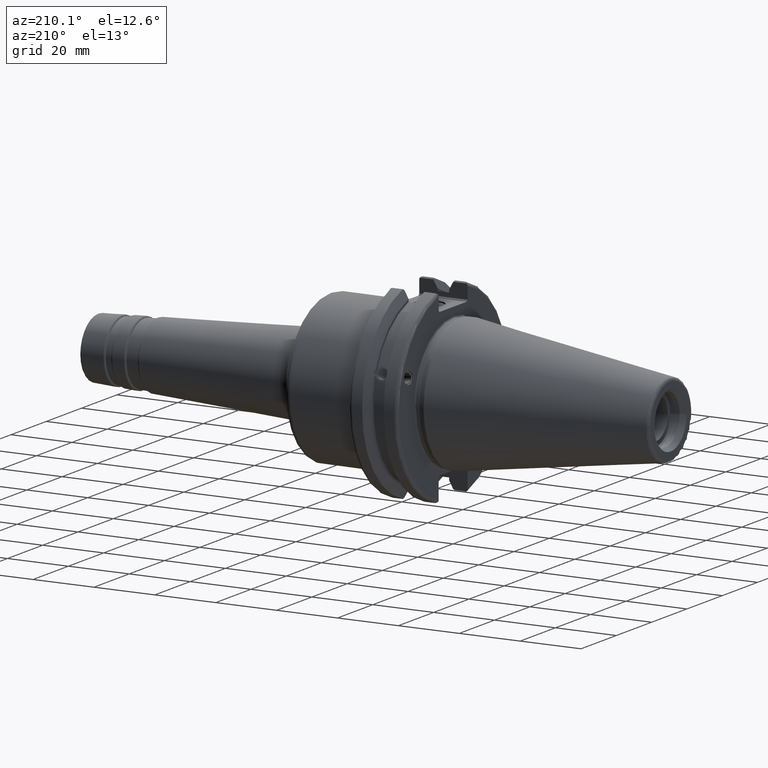
[diagram: clean part render]
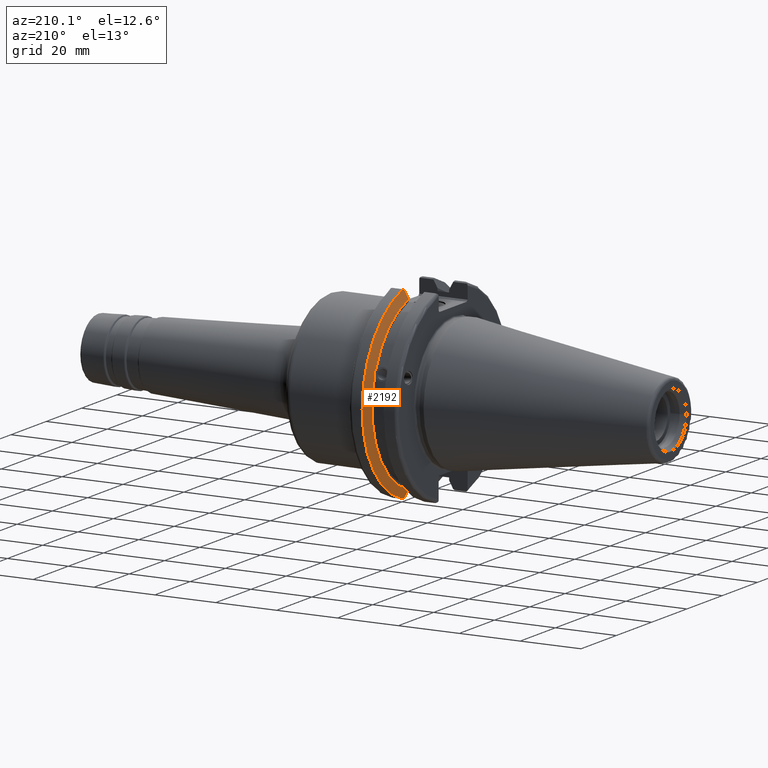
[diagram: same view with one face highlighted and labeled with its STEP entity id]
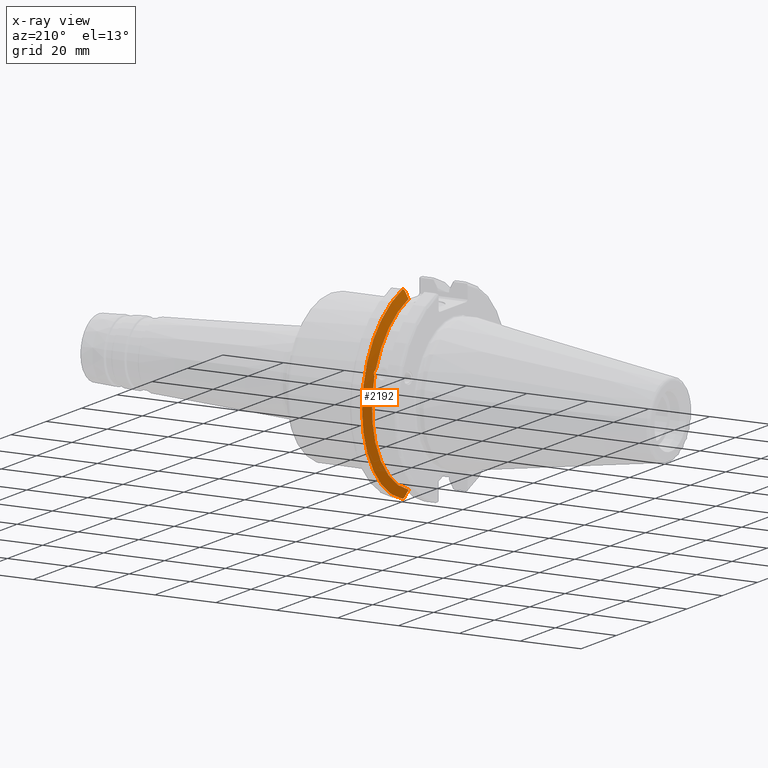
[diagram: x-ray of the same camera — body ghosted, the highlighted face saturated]
A machine part, auxiliary view. The second image highlights one B-rep face of the part: STEP entity #2192.
The next image is the same camera in x-ray: the body ghosted, the highlighted face saturated — about 0% of this face is hidden behind the body in this view.
In plain terms, the highlighted conical surface has half-angle 60 deg.
Its self-contained STEP definition (entity closure, byte-faithful):
#23=(
BOUNDED_CURVE()
B_SPLINE_CURVE(2,(#4026,#4027,#4028),.UNSPECIFIED.,.F.,.F.)
B_SPLINE_CURVE_WITH_KNOTS((3,3),(0.329353533631226,0.393258405001025),
 .UNSPECIFIED.)
CURVE()
GEOMETRIC_REPRESENTATION_ITEM()
RATIONAL_B_SPLINE_CURVE((1.00047644010577,1.00028444218285,1.))
REPRESENTATION_ITEM('')
);
#24=(
BOUNDED_CURVE()
B_SPLINE_CURVE(2,(#4040,#4041,#4042),.UNSPECIFIED.,.F.,.F.)
B_SPLINE_CURVE_WITH_KNOTS((3,3),(0.0550586467393769,0.331607789535852),
 .UNSPECIFIED.)
CURVE()
GEOMETRIC_REPRESENTATION_ITEM()
RATIONAL_B_SPLINE_CURVE((1.00031614444922,1.00095203903643,1.))
REPRESENTATION_ITEM('')
);
#29=(
BOUNDED_CURVE()
B_SPLINE_CURVE(2,(#4209,#4210,#4211),.UNSPECIFIED.,.F.,.F.)
B_SPLINE_CURVE_WITH_KNOTS((3,3),(0.,0.276549142795274),.UNSPECIFIED.)
CURVE()
GEOMETRIC_REPRESENTATION_ITEM()
RATIONAL_B_SPLINE_CURVE((1.,1.00095203903599,1.00031614444907))
REPRESENTATION_ITEM('')
);
#30=(
BOUNDED_CURVE()
B_SPLINE_CURVE(2,(#4226,#4227,#4228),.UNSPECIFIED.,.F.,.F.)
B_SPLINE_CURVE_WITH_KNOTS((3,3),(0.,0.0639048713675655),.UNSPECIFIED.)
CURVE()
GEOMETRIC_REPRESENTATION_ITEM()
RATIONAL_B_SPLINE_CURVE((1.,1.00028444218286,1.00047644010578))
REPRESENTATION_ITEM('')
);
#131=B_SPLINE_CURVE_WITH_KNOTS('',3,(#3817,#3818,#3819,#3820,#3821,#3822,
#3823,#3824),.UNSPECIFIED.,.F.,.F.,(4,2,2,4),(0.451995700189023,0.464547828547662,
0.504528771685167,0.544509714822672),.UNSPECIFIED.);
#135=B_SPLINE_CURVE_WITH_KNOTS('',3,(#3879,#3880,#3881,#3882,#3883,#3884,
#3885,#3886),.UNSPECIFIED.,.F.,.F.,(4,2,2,4),(0.544509714822672,0.584490657960177,
0.624471601097682,0.637023729456323),.UNSPECIFIED.);
#281=FACE_OUTER_BOUND('',#402,.T.);
#402=EDGE_LOOP('',(#2013,#2014,#2015,#2016,#2017,#2018,#2019,#2020,#2021));
#744=CIRCLE('',#2425,28.9593772964944);
#777=CIRCLE('',#2492,31.75);
#786=CIRCLE('',#2509,28.9593772964944);
#944=VERTEX_POINT('',#3814);
#945=VERTEX_POINT('',#3816);
#952=VERTEX_POINT('',#3877);
#961=VERTEX_POINT('',#3918);
#992=VERTEX_POINT('',#4023);
#993=VERTEX_POINT('',#4025);
#1022=VERTEX_POINT('',#4206);
#1023=VERTEX_POINT('',#4208);
#1026=VERTEX_POINT('',#4224);
#1239=EDGE_CURVE('',#945,#944,#131,.T.);
#1247=EDGE_CURVE('',#944,#952,#135,.T.);
#1259=EDGE_CURVE('',#961,#945,#744,.T.);
#1299=EDGE_CURVE('',#992,#993,#23,.T.);
#1304=EDGE_CURVE('',#992,#961,#24,.T.);
#1351=EDGE_CURVE('',#1023,#1022,#29,.T.);
#1359=EDGE_CURVE('',#1026,#1022,#30,.T.);
#1360=EDGE_CURVE('',#993,#1026,#777,.T.);
#1372=EDGE_CURVE('',#952,#1023,#786,.T.);
#2013=ORIENTED_EDGE('',*,*,#1239,.T.);
#2014=ORIENTED_EDGE('',*,*,#1247,.T.);
#2015=ORIENTED_EDGE('',*,*,#1372,.T.);
#2016=ORIENTED_EDGE('',*,*,#1351,.T.);
#2017=ORIENTED_EDGE('',*,*,#1359,.F.);
#2018=ORIENTED_EDGE('',*,*,#1360,.F.);
#2019=ORIENTED_EDGE('',*,*,#1299,.F.);
#2020=ORIENTED_EDGE('',*,*,#1304,.T.);
#2021=ORIENTED_EDGE('',*,*,#1259,.T.);
#2090=CONICAL_SURFACE('',#2508,30.3546886482472,1.0471975511966);
#2192=ADVANCED_FACE('',(#281),#2090,.T.);
#2425=AXIS2_PLACEMENT_3D('',#3919,#2984,#2985);
#2492=AXIS2_PLACEMENT_3D('',#4230,#3161,#3162);
#2508=AXIS2_PLACEMENT_3D('',#4254,#3196,#3197);
#2509=AXIS2_PLACEMENT_3D('',#4255,#3198,#3199);
#2984=DIRECTION('center_axis',(1.,0.,0.));
#2985=DIRECTION('ref_axis',(0.,0.,-1.));
#3161=DIRECTION('center_axis',(1.,0.,0.));
#3162=DIRECTION('ref_axis',(0.,0.,-1.));
#3196=DIRECTION('center_axis',(1.,0.,0.));
#3197=DIRECTION('ref_axis',(0.,1.,0.));
#3198=DIRECTION('center_axis',(1.,0.,0.));
#3199=DIRECTION('ref_axis',(0.,0.,-1.));
#3814=CARTESIAN_POINT('',(13.2341,27.51401829017,10.0142836826778));
#3816=CARTESIAN_POINT('',(13.0491,27.4956274489925,9.09043478536244));
#3817=CARTESIAN_POINT('Ctrl Pts',(13.0491,27.4956274489925,9.09043478536245));
#3818=CARTESIAN_POINT('Ctrl Pts',(13.0632204071996,27.5087667900418,9.12860597076217));
#3819=CARTESIAN_POINT('Ctrl Pts',(13.0766929817857,27.5206055003512,9.16696618806877));
#3820=CARTESIAN_POINT('Ctrl Pts',(13.130081441159,27.5642934663232,9.32791534028656));
#3821=CARTESIAN_POINT('Ctrl Pts',(13.1682197084175,27.5867382255984,9.46717946402648));
#3822=CARTESIAN_POINT('Ctrl Pts',(13.2204106446058,27.5847569104122,9.74771639360672));
#3823=CARTESIAN_POINT('Ctrl Pts',(13.2341,27.559599249844,9.8890510252165));
#3824=CARTESIAN_POINT('Ctrl Pts',(13.2341,27.51401829017,10.0142836826778));
#3877=CARTESIAN_POINT('',(13.0491,26.9060914640648,10.7101715919071));
#3879=CARTESIAN_POINT('Ctrl Pts',(13.2341,27.51401829017,10.0142836826778));
#3880=CARTESIAN_POINT('Ctrl Pts',(13.2341,27.4684373304961,10.139516340139));
#3881=CARTESIAN_POINT('Ctrl Pts',(13.2204106446058,27.3968610665578,10.2639559818059));
#3882=CARTESIAN_POINT('Ctrl Pts',(13.1682197084175,27.2180531796526,10.4801333026531));
#3883=CARTESIAN_POINT('Ctrl Pts',(13.130081441159,27.1113422433189,10.5723885976054));
#3884=CARTESIAN_POINT('Ctrl Pts',(13.0766929817857,26.9744191989197,10.6676007180674));
#3885=CARTESIAN_POINT('Ctrl Pts',(13.0632204071996,26.9406927482839,10.6893765730703));
#3886=CARTESIAN_POINT('Ctrl Pts',(13.0491,26.9060914640648,10.7101715919071));
#3918=CARTESIAN_POINT('',(13.0491,8.19,-27.7771386827498));
#3919=CARTESIAN_POINT('Origin',(13.0491,0.,0.));
#4023=CARTESIAN_POINT('',(14.3815146964874,8.19,-30.1755016258903));
#4025=CARTESIAN_POINT('',(14.6602667690756,8.67204822802685,-30.5427254764662));
#4026=CARTESIAN_POINT('Ctrl Pts',(14.3815146964874,8.19,-30.1755016258903));
#4027=CARTESIAN_POINT('Ctrl Pts',(14.5192085187884,8.42917748263464,-30.3577067892692));
#4028=CARTESIAN_POINT('Ctrl Pts',(14.6602667690756,8.67204822802686,-30.5427254764662));
#4040=CARTESIAN_POINT('Ctrl Pts',(14.3815146964874,8.18999999999999,-30.1755016258903));
#4041=CARTESIAN_POINT('Ctrl Pts',(13.687736438474,8.19,-28.9303689539668));
#4042=CARTESIAN_POINT('Ctrl Pts',(13.0491,8.19,-27.7771386827498));
#4206=CARTESIAN_POINT('',(14.3815146964874,8.19,30.1755016258903));
#4208=CARTESIAN_POINT('',(13.0491,8.19,27.7771386827498));
#4209=CARTESIAN_POINT('Ctrl Pts',(13.0491,8.19,27.7771386827498));
#4210=CARTESIAN_POINT('Ctrl Pts',(13.687736438489,8.19,28.9303689539938));
#4211=CARTESIAN_POINT('Ctrl Pts',(14.3815146964874,8.19,30.1755016258903));
#4224=CARTESIAN_POINT('',(14.6602667690756,8.67204822802685,30.5427254764662));
#4226=CARTESIAN_POINT('Ctrl Pts',(14.6602667690756,8.67204822802687,30.5427254764662));
#4227=CARTESIAN_POINT('Ctrl Pts',(14.5192085187837,8.42917748262644,30.357706789263));
#4228=CARTESIAN_POINT('Ctrl Pts',(14.3815146964874,8.19,30.1755016258903));
#4230=CARTESIAN_POINT('Origin',(14.6602667690756,0.,0.));
#4254=CARTESIAN_POINT('Origin',(13.8546833845378,0.,0.));
#4255=CARTESIAN_POINT('Origin',(13.0491,0.,0.));